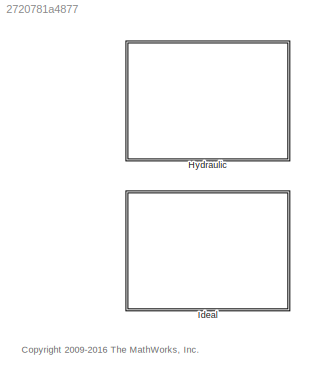
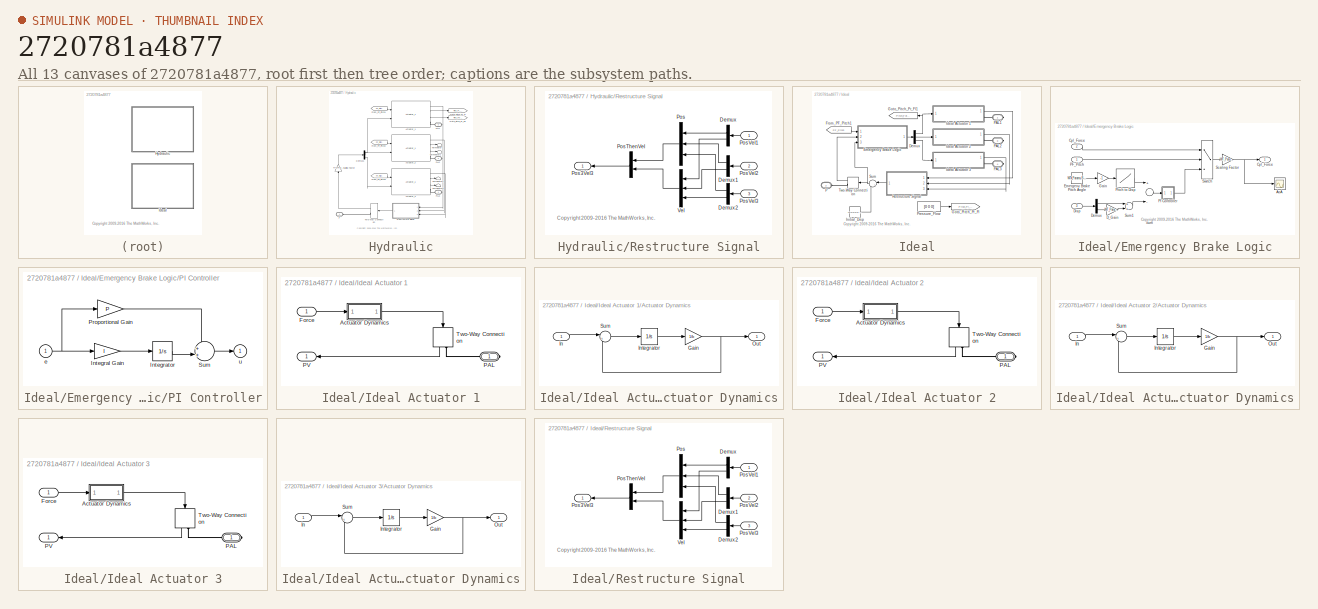
[diagram: thumbnail index - all 13 canvases of the model, root first then tree order]
MODEL slx_2720781a4877
KIND library
CONFIG AbsTol = auto
CONFIG FixedStep = auto
CONFIG MaxStep = auto
CONFIG MinStep = auto
CONFIG RelTol = 1e-3
CONFIG SampleTimeConstraint = Unconstrained
CONFIG Solver = ode45
CONFIG SolverMode = Auto
CONFIG SolverName = ode45
CONFIG StartTime = 0.0
CONFIG StopTime = 10.0
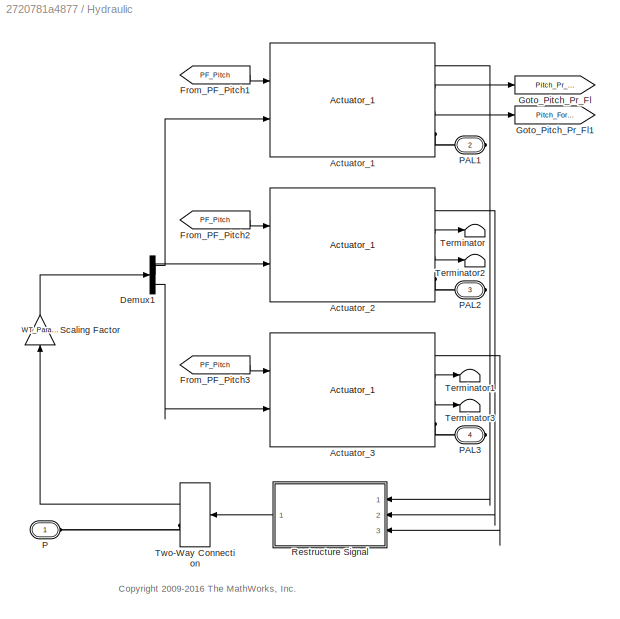
BLOCK [SubSystem] Hydraulic
  Ports = [0, 0, 0, 0, 0, 1, 3]
  RequestExecContextInheritance = off
  Variant = off
BLOCK [Reference] Hydraulic/Actuator_1  REF=Hydraulic_Actuator_Lib/Actuator_1
  Ports = [2, 3, 0, 0, 0, 0, 1]
  SourceBlock = Hydraulic_Actuator_Lib/Actuator_1
BLOCK [Reference] Hydraulic/Actuator_2  REF=Hydraulic_Actuator_Lib/Actuator_1
  Ports = [2, 3, 0, 0, 0, 0, 1]
  SourceBlock = Hydraulic_Actuator_Lib/Actuator_1
BLOCK [Reference] Hydraulic/Actuator_3  REF=Hydraulic_Actuator_Lib/Actuator_1
  Ports = [2, 3, 0, 0, 0, 0, 1]
  SourceBlock = Hydraulic_Actuator_Lib/Actuator_1
BLOCK [Demux] Hydraulic/Demux1
  DisplayOption = bar
  Outputs = 3
  Ports = [1, 3]
BLOCK [From] Hydraulic/From_PF_Pitch1
  CloseFcn = tagdialog Close
  GotoTag = PF_Pitch
  TagVisibility = global
BLOCK [From] Hydraulic/From_PF_Pitch2
  CloseFcn = tagdialog Close
  GotoTag = PF_Pitch
  TagVisibility = global
BLOCK [From] Hydraulic/From_PF_Pitch3
  CloseFcn = tagdialog Close
  GotoTag = PF_Pitch
  TagVisibility = global
BLOCK [Goto] Hydraulic/Goto_Pitch_Pr_Fl
  GotoTag = Pitch_Pr_Fl
  TagVisibility = global
BLOCK [Goto] Hydraulic/Goto_Pitch_Pr_Fl1
  GotoTag = Pitch_Force
  TagVisibility = global
BLOCK [PMIOPort] Hydraulic/P
  Port = 1
  Side = Left
  Tag = PMCPort
BLOCK [PMIOPort] Hydraulic/PAL1
  Port = 2
  Side = Right
  Tag = PMCPort
BLOCK [PMIOPort] Hydraulic/PAL2
  Port = 3
  Side = Right
  Tag = PMCPort
BLOCK [PMIOPort] Hydraulic/PAL3
  Port = 4
  Side = Right
  Tag = PMCPort
BLOCK [SubSystem] Hydraulic/Restructure Signal
  Ports = [3, 1]
  RequestExecContextInheritance = off
  Variant = off
BLOCK [Demux] Hydraulic/Restructure Signal/Demux
  DisplayOption = bar
  Outputs = 2
  Ports = [1, 2]
BLOCK [Demux] Hydraulic/Restructure Signal/Demux1
  DisplayOption = bar
  Outputs = 2
  Ports = [1, 2]
BLOCK [Demux] Hydraulic/Restructure Signal/Demux2
  DisplayOption = bar
  Outputs = 2
  Ports = [1, 2]
BLOCK [Mux] Hydraulic/Restructure Signal/Pos
  DisplayOption = bar
  Inputs = 3
  Ports = [3, 1]
BLOCK [Outport] Hydraulic/Restructure Signal/Pos3Vel3
  IconDisplay = Port number
BLOCK [Mux] Hydraulic/Restructure Signal/PosThenVel
  DisplayOption = bar
  Inputs = 2
  Ports = [2, 1]
BLOCK [Inport] Hydraulic/Restructure Signal/PosVel1
  IconDisplay = Port number
BLOCK [Inport] Hydraulic/Restructure Signal/PosVel2
  IconDisplay = Port number
  Port = 2
BLOCK [Inport] Hydraulic/Restructure Signal/PosVel3
  IconDisplay = Port number
  Port = 3
BLOCK [Mux] Hydraulic/Restructure Signal/Vel
  DisplayOption = bar
  Inputs = 3
  Ports = [3, 1]
BLOCK [Gain] Hydraulic/Scaling Factor
  Gain = WT_Params.Pitch_Actuator.hydraulic_actuator_scale_factor
  OutDataTypeStr = Inherit: Inherit via internal rule
  ParamDataTypeStr = Inherit: Inherit via internal rule
  SaturateOnIntegerOverflow = off
BLOCK [Terminator] Hydraulic/Terminator
BLOCK [Terminator] Hydraulic/Terminator1
BLOCK [Terminator] Hydraulic/Terminator2
BLOCK [Terminator] Hydraulic/Terminator3
BLOCK [TwoWayConnection] Hydraulic/Two-Way Connection
  Ports = [1, 1, 0, 0, 0, 0, 1]
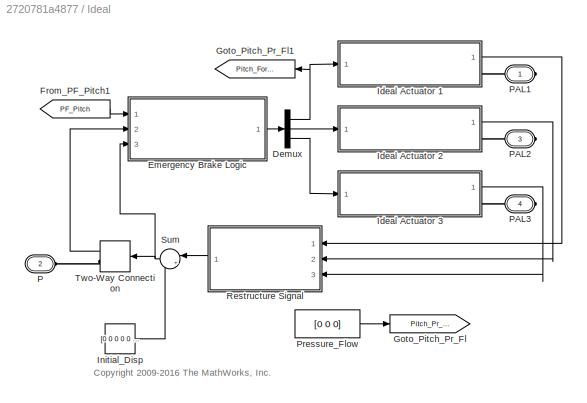
BLOCK [SubSystem] Ideal
  Ports = [0, 0, 0, 0, 0, 1, 3]
  RequestExecContextInheritance = off
  Variant = off
BLOCK [Demux] Ideal/Demux
  DisplayOption = bar
  Outputs = 3
  Ports = [1, 3]
BLOCK [SubSystem] Ideal/Emergency Brake Logic
  Ports = [3, 1]
  RequestExecContextInheritance = off
  Variant = off
BLOCK [Scope] Ideal/Emergency Brake Logic/AoA
  Ports = [1]
  ScopeSpecificationString = C++SS(StrPVP('Location','[12, 624, 484, 891]'),StrPVP('Open','off'),StrPVP('ZoomMode','yonly'),MxPVP('AxesTitles',24,'struct(''axes1'',''%<SignalLabel>'')'),StrPVP('TimeRange','600'),StrPVP('YMin','0'),StrPVP('YMax','100'),StrPVP('SaveName','ScopeData10'),StrPVP('DataFormat','StructureWithTime'),StrPVP('LimitDataPoints','off'),StrPVP('BlockParamSampleTime','0'),StrPVP('DataLoggingDecimation','1'),...<+423ch>
BLOCK [Outport] Ideal/Emergency Brake Logic/Cyl_Force
  IconDisplay = Port number
BLOCK [Inport] Ideal/Emergency Brake Logic/Cyl_Force 
  IconDisplay = Port number
  Port = 2
BLOCK [Gain] Ideal/Emergency Brake Logic/D_Gain
  Gain = WT_Params.Pitch_Controller.D_Gain
  OutDataTypeStr = Inherit: Inherit via internal rule
  ParamDataTypeStr = Inherit: Inherit via internal rule
  SaturateOnIntegerOverflow = off
BLOCK [Demux] Ideal/Emergency Brake Logic/Demux
  DisplayOption = bar
  Outputs = 2
  Ports = [1, 2]
BLOCK [Inport] Ideal/Emergency Brake Logic/Disp
  IconDisplay = Port number
  Port = 3
BLOCK [Constant] Ideal/Emergency Brake Logic/Emergeny Brake Pitch Angle
  Value = WT_Params.Pitch_Controller.emergency_brake_pitch_angle
BLOCK [Gain] Ideal/Emergency Brake Logic/Gain
  Gain = -1
  OutDataTypeStr = Inherit: Inherit via internal rule
  ParamDataTypeStr = Inherit: Inherit via internal rule
  SaturateOnIntegerOverflow = off
BLOCK [Inport] Ideal/Emergency Brake Logic/PF_Pitch
  IconDisplay = Port number
BLOCK [SubSystem] Ideal/Emergency Brake Logic/PI Controller
  Ports = [1, 1]
  RequestExecContextInheritance = off
  Variant = off
BLOCK [Gain] Ideal/Emergency Brake Logic/PI Controller/Integral Gain
  Gain = I
BLOCK [Integrator] Ideal/Emergency Brake Logic/PI Controller/Integrator
  Ports = [1, 1]
BLOCK [Gain] Ideal/Emergency Brake Logic/PI Controller/Proportional Gain
  Gain = P
BLOCK [Sum] Ideal/Emergency Brake Logic/PI Controller/Sum
  IconShape = round
  Inputs = ++|
  Ports = [2, 1]
BLOCK [Inport] Ideal/Emergency Brake Logic/PI Controller/e
  IconDisplay = Port number
BLOCK [Outport] Ideal/Emergency Brake Logic/PI Controller/u
  IconDisplay = Port number
  InitialOutput = 0
BLOCK [Lookup] Ideal/Emergency Brake Logic/Pitch to Disp
  InputValues = -Actuator_Lookup.angle
  SaturateOnIntegerOverflow = off
  Table = Actuator_Lookup.extension
BLOCK [Gain] Ideal/Emergency Brake Logic/Scaling Factor
  Gain = WT_Params.Pitch_Actuator.ideal_actuator_scale_factor
  OutDataTypeStr = Inherit: Inherit via internal rule
  ParamDataTypeStr = Inherit: Inherit via internal rule
  SaturateOnIntegerOverflow = off
BLOCK [Sum] Ideal/Emergency Brake Logic/Sum
  InputSameDT = off
  Inputs = +-
  OutDataTypeStr = Inherit: Inherit via internal rule
  Ports = [2, 1]
  SaturateOnIntegerOverflow = off
BLOCK [Sum] Ideal/Emergency Brake Logic/Sum1
  InputSameDT = off
  OutDataTypeStr = Inherit: Inherit via internal rule
  Ports = [2, 1]
  SaturateOnIntegerOverflow = off
BLOCK [Switch] Ideal/Emergency Brake Logic/Switch
  Criteria = u2 > Threshold
  InputSameDT = off
  SaturateOnIntegerOverflow = off
BLOCK [From] Ideal/From_PF_Pitch1
  CloseFcn = tagdialog Close
  GotoTag = PF_Pitch
  TagVisibility = global
BLOCK [Goto] Ideal/Goto_Pitch_Pr_Fl
  GotoTag = Pitch_Pr_Fl
  TagVisibility = global
BLOCK [Goto] Ideal/Goto_Pitch_Pr_Fl1
  GotoTag = Pitch_Force
  TagVisibility = global
BLOCK [SubSystem] Ideal/Ideal Actuator 1
  Ports = [1, 1, 0, 0, 0, 0, 1]
  RequestExecContextInheritance = off
  Variant = off
BLOCK [SubSystem] Ideal/Ideal Actuator 1/Actuator Dynamics
  Ports = [1, 1]
  RequestExecContextInheritance = off
  Variant = off
BLOCK [Gain] Ideal/Ideal Actuator 1/Actuator Dynamics/Gain
  Gain = 1/b
  OutDataTypeStr = Inherit: Inherit via internal rule
  ParamDataTypeStr = Inherit: Inherit via internal rule
  SaturateOnIntegerOverflow = off
BLOCK [Inport] Ideal/Ideal Actuator 1/Actuator Dynamics/In
  IconDisplay = Port number
BLOCK [Integrator] Ideal/Ideal Actuator 1/Actuator Dynamics/Integrator
  InitialCondition = x_initial
  Ports = [1, 1]
BLOCK [Outport] Ideal/Ideal Actuator 1/Actuator Dynamics/Out
  IconDisplay = Port number
BLOCK [Sum] Ideal/Ideal Actuator 1/Actuator Dynamics/Sum
  IconShape = round
  Inputs = |+-
  Ports = [2, 1]
BLOCK [Inport] Ideal/Ideal Actuator 1/Force
  IconDisplay = Port number
BLOCK [PMIOPort] Ideal/Ideal Actuator 1/PAL
  Port = 1
  Side = Right
BLOCK [Outport] Ideal/Ideal Actuator 1/PV
  IconDisplay = Port number
BLOCK [TwoWayConnection] Ideal/Ideal Actuator 1/Two-Way Connection
  Ports = [1, 1, 0, 0, 0, 0, 1]
BLOCK [SubSystem] Ideal/Ideal Actuator 2
  Ports = [1, 1, 0, 0, 0, 0, 1]
  RequestExecContextInheritance = off
  Variant = off
BLOCK [SubSystem] Ideal/Ideal Actuator 2/Actuator Dynamics
  Ports = [1, 1]
  RequestExecContextInheritance = off
  Variant = off
BLOCK [Gain] Ideal/Ideal Actuator 2/Actuator Dynamics/Gain
  Gain = 1/b
  OutDataTypeStr = Inherit: Inherit via internal rule
  ParamDataTypeStr = Inherit: Inherit via internal rule
  SaturateOnIntegerOverflow = off
BLOCK [Inport] Ideal/Ideal Actuator 2/Actuator Dynamics/In
  IconDisplay = Port number
BLOCK [Integrator] Ideal/Ideal Actuator 2/Actuator Dynamics/Integrator
  InitialCondition = x_initial
  Ports = [1, 1]
BLOCK [Outport] Ideal/Ideal Actuator 2/Actuator Dynamics/Out
  IconDisplay = Port number
BLOCK [Sum] Ideal/Ideal Actuator 2/Actuator Dynamics/Sum
  IconShape = round
  Inputs = |+-
  Ports = [2, 1]
BLOCK [Inport] Ideal/Ideal Actuator 2/Force
  IconDisplay = Port number
BLOCK [PMIOPort] Ideal/Ideal Actuator 2/PAL
  Port = 1
  Side = Right
BLOCK [Outport] Ideal/Ideal Actuator 2/PV
  IconDisplay = Port number
BLOCK [TwoWayConnection] Ideal/Ideal Actuator 2/Two-Way Connection
  Ports = [1, 1, 0, 0, 0, 0, 1]
BLOCK [SubSystem] Ideal/Ideal Actuator 3
  Ports = [1, 1, 0, 0, 0, 0, 1]
  RequestExecContextInheritance = off
  Variant = off
BLOCK [SubSystem] Ideal/Ideal Actuator 3/Actuator Dynamics
  Ports = [1, 1]
  RequestExecContextInheritance = off
  Variant = off
BLOCK [Gain] Ideal/Ideal Actuator 3/Actuator Dynamics/Gain
  Gain = 1/b
  OutDataTypeStr = Inherit: Inherit via internal rule
  ParamDataTypeStr = Inherit: Inherit via internal rule
  SaturateOnIntegerOverflow = off
BLOCK [Inport] Ideal/Ideal Actuator 3/Actuator Dynamics/In
  IconDisplay = Port number
BLOCK [Integrator] Ideal/Ideal Actuator 3/Actuator Dynamics/Integrator
  InitialCondition = x_initial
  Ports = [1, 1]
BLOCK [Outport] Ideal/Ideal Actuator 3/Actuator Dynamics/Out
  IconDisplay = Port number
BLOCK [Sum] Ideal/Ideal Actuator 3/Actuator Dynamics/Sum
  IconShape = round
  Inputs = |+-
  Ports = [2, 1]
BLOCK [Inport] Ideal/Ideal Actuator 3/Force
  IconDisplay = Port number
BLOCK [PMIOPort] Ideal/Ideal Actuator 3/PAL
  Port = 1
  Side = Right
BLOCK [Outport] Ideal/Ideal Actuator 3/PV
  IconDisplay = Port number
BLOCK [TwoWayConnection] Ideal/Ideal Actuator 3/Two-Way Connection
  Ports = [1, 1, 0, 0, 0, 0, 1]
BLOCK [Constant] Ideal/Initial_Disp
  Value = [0 0 0 0 0 0]
BLOCK [PMIOPort] Ideal/P
  Port = 2
  Side = Left
  Tag = PMCPort
BLOCK [PMIOPort] Ideal/PAL1
  Port = 1
  Side = Right
  Tag = PMCPort
BLOCK [PMIOPort] Ideal/PAL2
  Port = 3
  Side = Right
  Tag = PMCPort
BLOCK [PMIOPort] Ideal/PAL3
  Port = 4
  Side = Right
  Tag = PMCPort
BLOCK [Constant] Ideal/Pressure_Flow
  Value = [0 0 0]
BLOCK [SubSystem] Ideal/Restructure Signal
  Ports = [3, 1]
  RequestExecContextInheritance = off
  Variant = off
BLOCK [Demux] Ideal/Restructure Signal/Demux
  DisplayOption = bar
  Outputs = 2
  Ports = [1, 2]
BLOCK [Demux] Ideal/Restructure Signal/Demux1
  DisplayOption = bar
  Outputs = 2
  Ports = [1, 2]
BLOCK [Demux] Ideal/Restructure Signal/Demux2
  DisplayOption = bar
  Outputs = 2
  Ports = [1, 2]
BLOCK [Mux] Ideal/Restructure Signal/Pos
  DisplayOption = bar
  Inputs = 3
  Ports = [3, 1]
BLOCK [Outport] Ideal/Restructure Signal/Pos3Vel3
  IconDisplay = Port number
BLOCK [Mux] Ideal/Restructure Signal/PosThenVel
  DisplayOption = bar
  Inputs = 2
  Ports = [2, 1]
BLOCK [Inport] Ideal/Restructure Signal/PosVel1
  IconDisplay = Port number
BLOCK [Inport] Ideal/Restructure Signal/PosVel2
  IconDisplay = Port number
  Port = 2
BLOCK [Inport] Ideal/Restructure Signal/PosVel3
  IconDisplay = Port number
  Port = 3
BLOCK [Mux] Ideal/Restructure Signal/Vel
  DisplayOption = bar
  Inputs = 3
  Ports = [3, 1]
BLOCK [Sum] Ideal/Sum
  IconShape = round
  InputSameDT = off
  Inputs = |++
  OutDataTypeStr = Inherit: Inherit via internal rule
  Ports = [2, 1]
  SaturateOnIntegerOverflow = off
BLOCK [TwoWayConnection] Ideal/Two-Way Connection
  Ports = [1, 1, 0, 0, 0, 0, 1]
ANNOTATION (root): <copyright redacted>
ANNOTATION Hydraulic: <copyright redacted>
ANNOTATION Hydraulic/Restructure Signal: <copyright redacted>
ANNOTATION Ideal: <copyright redacted>
ANNOTATION Ideal/Emergency Brake Logic: <copyright redacted>
ANNOTATION Ideal/Restructure Signal: <copyright redacted>
LINE Hydraulic/Actuator_1:1 -> Hydraulic/Restructure Signal:1
LINE Hydraulic/Actuator_1:2 -> Hydraulic/Goto_Pitch_Pr_Fl:1
LINE Hydraulic/Actuator_1:3 -> Hydraulic/Goto_Pitch_Pr_Fl1:1
LINE Hydraulic/Actuator_2:1 -> Hydraulic/Restructure Signal:2
LINE Hydraulic/Actuator_2:2 -> Hydraulic/Terminator:1
LINE Hydraulic/Actuator_2:3 -> Hydraulic/Terminator2:1
LINE Hydraulic/Actuator_3:1 -> Hydraulic/Restructure Signal:3
LINE Hydraulic/Actuator_3:2 -> Hydraulic/Terminator1:1
LINE Hydraulic/Actuator_3:3 -> Hydraulic/Terminator3:1
LINE Hydraulic/Demux1:1 -> Hydraulic/Actuator_1:2
LINE Hydraulic/Demux1:2 -> Hydraulic/Actuator_2:2
LINE Hydraulic/Demux1:3 -> Hydraulic/Actuator_3:2
LINE Hydraulic/From_PF_Pitch1:1 -> Hydraulic/Actuator_1:1
LINE Hydraulic/From_PF_Pitch2:1 -> Hydraulic/Actuator_2:1
LINE Hydraulic/From_PF_Pitch3:1 -> Hydraulic/Actuator_3:1
LINE Hydraulic/Restructure Signal/Demux1:1 -> Hydraulic/Restructure Signal/Pos:2
LINE Hydraulic/Restructure Signal/Demux1:2 -> Hydraulic/Restructure Signal/Vel:2
LINE Hydraulic/Restructure Signal/Demux2:1 -> Hydraulic/Restructure Signal/Pos:3
LINE Hydraulic/Restructure Signal/Demux2:2 -> Hydraulic/Restructure Signal/Vel:3
LINE Hydraulic/Restructure Signal/Demux:1 -> Hydraulic/Restructure Signal/Pos:1
LINE Hydraulic/Restructure Signal/Demux:2 -> Hydraulic/Restructure Signal/Vel:1
LINE Hydraulic/Restructure Signal/Pos:1 -> Hydraulic/Restructure Signal/PosThenVel:1
LINE Hydraulic/Restructure Signal/PosThenVel:1 -> Hydraulic/Restructure Signal/Pos3Vel3:1
LINE Hydraulic/Restructure Signal/PosVel1:1 -> Hydraulic/Restructure Signal/Demux:1
LINE Hydraulic/Restructure Signal/PosVel2:1 -> Hydraulic/Restructure Signal/Demux1:1
LINE Hydraulic/Restructure Signal/PosVel3:1 -> Hydraulic/Restructure Signal/Demux2:1
LINE Hydraulic/Restructure Signal/Vel:1 -> Hydraulic/Restructure Signal/PosThenVel:2
LINE Hydraulic/Restructure Signal:1 -> Hydraulic/Two-Way Connection:1
LINE Hydraulic/Scaling Factor:1 -> Hydraulic/Demux1:1
LINE Hydraulic/Two-Way Connection:1 -> Hydraulic/Scaling Factor:1
NET Ideal/Demux:1 -> Ideal/Goto_Pitch_Pr_Fl1:1, Ideal/Ideal Actuator 1:1
LINE Ideal/Demux:2 -> Ideal/Ideal Actuator 2:1
LINE Ideal/Demux:3 -> Ideal/Ideal Actuator 3:1
LINE Ideal/Emergency Brake Logic/Cyl_Force :1 -> Ideal/Emergency Brake Logic/Switch:1
LINE Ideal/Emergency Brake Logic/D_Gain:1 -> Ideal/Emergency Brake Logic/Sum1:2
LINE Ideal/Emergency Brake Logic/Demux:1 -> Ideal/Emergency Brake Logic/Sum1:1
LINE Ideal/Emergency Brake Logic/Demux:2 -> Ideal/Emergency Brake Logic/D_Gain:1
LINE Ideal/Emergency Brake Logic/Disp:1 -> Ideal/Emergency Brake Logic/Demux:1
LINE Ideal/Emergency Brake Logic/Emergeny Brake Pitch Angle:1 -> Ideal/Emergency Brake Logic/Gain:1
LINE Ideal/Emergency Brake Logic/Gain:1 -> Ideal/Emergency Brake Logic/Pitch to Disp:1
LINE Ideal/Emergency Brake Logic/PF_Pitch:1 -> Ideal/Emergency Brake Logic/Switch:2
LINE Ideal/Emergency Brake Logic/PI Controller/Integral Gain:1 -> Ideal/Emergency Brake Logic/PI Controller/Integrator:1
LINE Ideal/Emergency Brake Logic/PI Controller/Integrator:1 -> Ideal/Emergency Brake Logic/PI Controller/Sum:2
LINE Ideal/Emergency Brake Logic/PI Controller/Proportional Gain:1 -> Ideal/Emergency Brake Logic/PI Controller/Sum:1
LINE Ideal/Emergency Brake Logic/PI Controller/Sum:1 -> Ideal/Emergency Brake Logic/PI Controller/u:1
NET Ideal/Emergency Brake Logic/PI Controller/e:1 -> Ideal/Emergency Brake Logic/PI Controller/Integral Gain:1, Ideal/Emergency Brake Logic/PI Controller/Proportional Gain:1
LINE Ideal/Emergency Brake Logic/PI Controller:1 -> Ideal/Emergency Brake Logic/Switch:3
LINE Ideal/Emergency Brake Logic/Pitch to Disp:1 -> Ideal/Emergency Brake Logic/Sum:1
NET Ideal/Emergency Brake Logic/Scaling Factor:1 -> Ideal/Emergency Brake Logic/AoA:1, Ideal/Emergency Brake Logic/Cyl_Force:1
LINE Ideal/Emergency Brake Logic/Sum1:1 -> Ideal/Emergency Brake Logic/Sum:2
LINE Ideal/Emergency Brake Logic/Sum:1 -> Ideal/Emergency Brake Logic/PI Controller:1
LINE Ideal/Emergency Brake Logic/Switch:1 -> Ideal/Emergency Brake Logic/Scaling Factor:1
LINE Ideal/Emergency Brake Logic:1 -> Ideal/Demux:1
LINE Ideal/From_PF_Pitch1:1 -> Ideal/Emergency Brake Logic:1
NET Ideal/Ideal Actuator 1/Actuator Dynamics/Gain:1 -> Ideal/Ideal Actuator 1/Actuator Dynamics/Out:1, Ideal/Ideal Actuator 1/Actuator Dynamics/Sum:2
LINE Ideal/Ideal Actuator 1/Actuator Dynamics/In:1 -> Ideal/Ideal Actuator 1/Actuator Dynamics/Sum:1
LINE Ideal/Ideal Actuator 1/Actuator Dynamics/Integrator:1 -> Ideal/Ideal Actuator 1/Actuator Dynamics/Gain:1
LINE Ideal/Ideal Actuator 1/Actuator Dynamics/Sum:1 -> Ideal/Ideal Actuator 1/Actuator Dynamics/Integrator:1
LINE Ideal/Ideal Actuator 1/Actuator Dynamics:1 -> Ideal/Ideal Actuator 1/Two-Way Connection:1
LINE Ideal/Ideal Actuator 1/Force:1 -> Ideal/Ideal Actuator 1/Actuator Dynamics:1
LINE Ideal/Ideal Actuator 1/Two-Way Connection:1 -> Ideal/Ideal Actuator 1/PV:1
LINE Ideal/Ideal Actuator 1:1 -> Ideal/Restructure Signal:1
NET Ideal/Ideal Actuator 2/Actuator Dynamics/Gain:1 -> Ideal/Ideal Actuator 2/Actuator Dynamics/Out:1, Ideal/Ideal Actuator 2/Actuator Dynamics/Sum:2
LINE Ideal/Ideal Actuator 2/Actuator Dynamics/In:1 -> Ideal/Ideal Actuator 2/Actuator Dynamics/Sum:1
LINE Ideal/Ideal Actuator 2/Actuator Dynamics/Integrator:1 -> Ideal/Ideal Actuator 2/Actuator Dynamics/Gain:1
LINE Ideal/Ideal Actuator 2/Actuator Dynamics/Sum:1 -> Ideal/Ideal Actuator 2/Actuator Dynamics/Integrator:1
LINE Ideal/Ideal Actuator 2/Actuator Dynamics:1 -> Ideal/Ideal Actuator 2/Two-Way Connection:1
LINE Ideal/Ideal Actuator 2/Force:1 -> Ideal/Ideal Actuator 2/Actuator Dynamics:1
LINE Ideal/Ideal Actuator 2/Two-Way Connection:1 -> Ideal/Ideal Actuator 2/PV:1
LINE Ideal/Ideal Actuator 2:1 -> Ideal/Restructure Signal:2
NET Ideal/Ideal Actuator 3/Actuator Dynamics/Gain:1 -> Ideal/Ideal Actuator 3/Actuator Dynamics/Out:1, Ideal/Ideal Actuator 3/Actuator Dynamics/Sum:2
LINE Ideal/Ideal Actuator 3/Actuator Dynamics/In:1 -> Ideal/Ideal Actuator 3/Actuator Dynamics/Sum:1
LINE Ideal/Ideal Actuator 3/Actuator Dynamics/Integrator:1 -> Ideal/Ideal Actuator 3/Actuator Dynamics/Gain:1
LINE Ideal/Ideal Actuator 3/Actuator Dynamics/Sum:1 -> Ideal/Ideal Actuator 3/Actuator Dynamics/Integrator:1
LINE Ideal/Ideal Actuator 3/Actuator Dynamics:1 -> Ideal/Ideal Actuator 3/Two-Way Connection:1
LINE Ideal/Ideal Actuator 3/Force:1 -> Ideal/Ideal Actuator 3/Actuator Dynamics:1
LINE Ideal/Ideal Actuator 3/Two-Way Connection:1 -> Ideal/Ideal Actuator 3/PV:1
LINE Ideal/Ideal Actuator 3:1 -> Ideal/Restructure Signal:3
LINE Ideal/Initial_Disp:1 -> Ideal/Sum:2
LINE Ideal/Pressure_Flow:1 -> Ideal/Goto_Pitch_Pr_Fl:1
LINE Ideal/Restructure Signal/Demux1:1 -> Ideal/Restructure Signal/Pos:2
LINE Ideal/Restructure Signal/Demux1:2 -> Ideal/Restructure Signal/Vel:2
LINE Ideal/Restructure Signal/Demux2:1 -> Ideal/Restructure Signal/Pos:3
LINE Ideal/Restructure Signal/Demux2:2 -> Ideal/Restructure Signal/Vel:3
LINE Ideal/Restructure Signal/Demux:1 -> Ideal/Restructure Signal/Pos:1
LINE Ideal/Restructure Signal/Demux:2 -> Ideal/Restructure Signal/Vel:1
LINE Ideal/Restructure Signal/Pos:1 -> Ideal/Restructure Signal/PosThenVel:1
LINE Ideal/Restructure Signal/PosThenVel:1 -> Ideal/Restructure Signal/Pos3Vel3:1
LINE Ideal/Restructure Signal/PosVel1:1 -> Ideal/Restructure Signal/Demux:1
LINE Ideal/Restructure Signal/PosVel2:1 -> Ideal/Restructure Signal/Demux1:1
LINE Ideal/Restructure Signal/PosVel3:1 -> Ideal/Restructure Signal/Demux2:1
LINE Ideal/Restructure Signal/Vel:1 -> Ideal/Restructure Signal/PosThenVel:2
LINE Ideal/Restructure Signal:1 -> Ideal/Sum:1
NET Ideal/Sum:1 -> Ideal/Emergency Brake Logic:3, Ideal/Two-Way Connection:1
LINE Ideal/Two-Way Connection:1 -> Ideal/Emergency Brake Logic:2
PLINE Hydraulic/Actuator_1:RConn1 -- Hydraulic/PAL1:RConn1
PLINE Hydraulic/Actuator_2:RConn1 -- Hydraulic/PAL2:RConn1
PLINE Hydraulic/Actuator_3:RConn1 -- Hydraulic/PAL3:RConn1
PLINE Hydraulic/P:RConn1 -- Hydraulic/Two-Way Connection:RConn1
PLINE Ideal/Ideal Actuator 1/PAL:RConn1 -- Ideal/Ideal Actuator 1/Two-Way Connection:RConn1
PLINE Ideal/Ideal Actuator 1:RConn1 -- Ideal/PAL1:RConn1
PLINE Ideal/Ideal Actuator 2/PAL:RConn1 -- Ideal/Ideal Actuator 2/Two-Way Connection:RConn1
PLINE Ideal/Ideal Actuator 2:RConn1 -- Ideal/PAL2:RConn1
PLINE Ideal/Ideal Actuator 3/PAL:RConn1 -- Ideal/Ideal Actuator 3/Two-Way Connection:RConn1
PLINE Ideal/Ideal Actuator 3:RConn1 -- Ideal/PAL3:RConn1
PLINE Ideal/P:RConn1 -- Ideal/Two-Way Connection:RConn1
note: NET lines group one-source signal fan-out (src -> all destinations, sorted); 1:1 wires keep LINE
